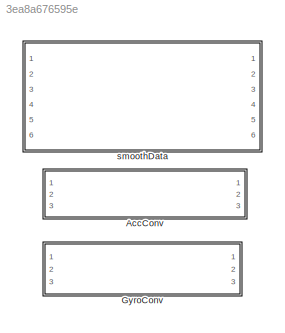
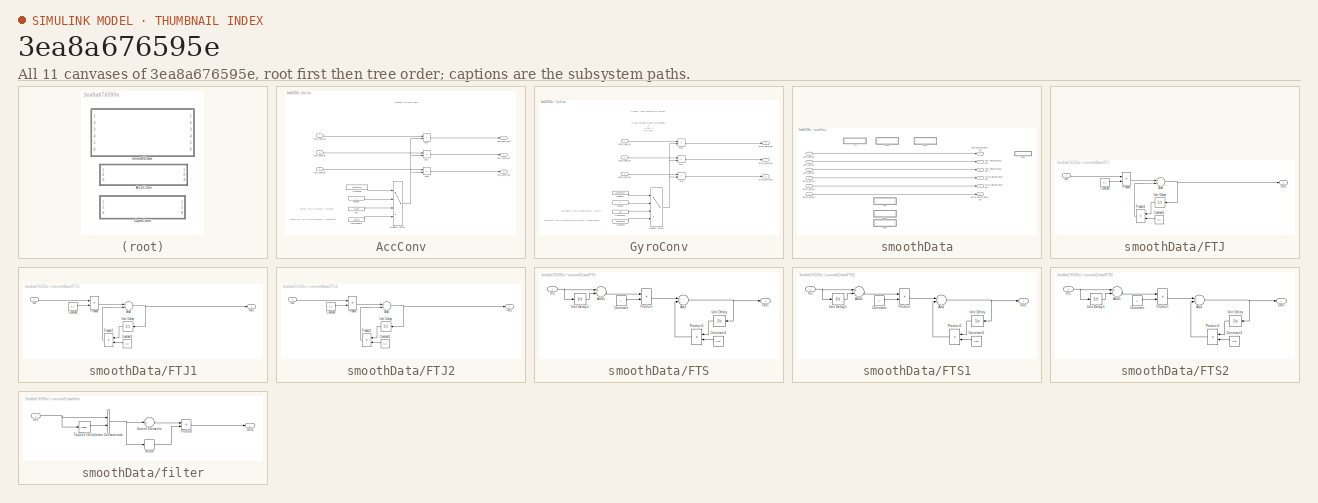
[diagram: thumbnail index - all 11 canvases of the model, root first then tree order]
MODEL slx_3ea8a676595e
KIND library
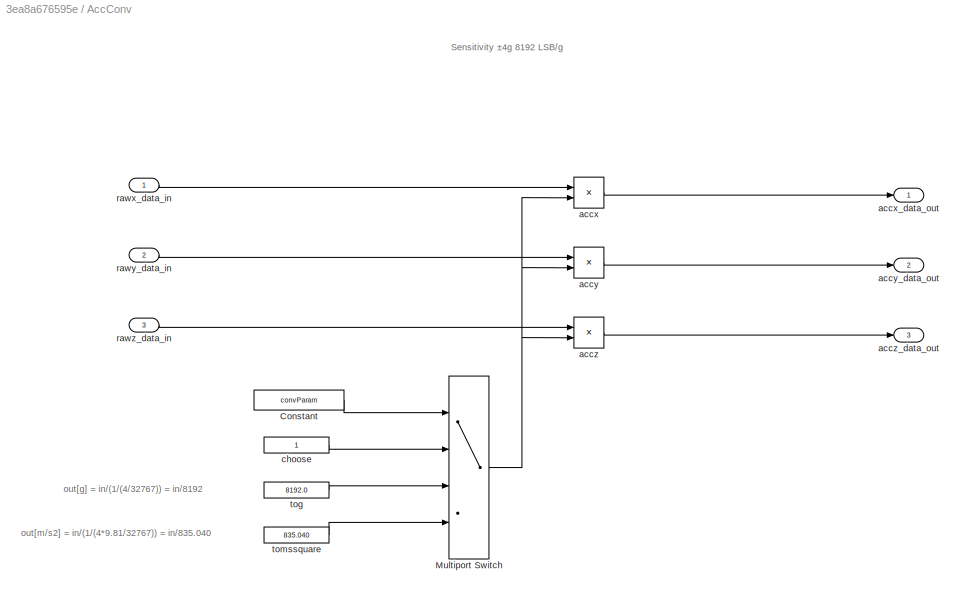
BLOCK [SubSystem] AccConv
  FunctionWithSeparateData = off
  MaskHideContents = off
  MinAlgLoopOccurrences = off
  Opaque = off
  Ports = [3, 3]
  PropExecContextOutsideSubsystem = off
  RTWFcnNameOpts = Use subsystem name
  RTWSystemCode = Nonreusable function
  RequestExecContextInheritance = off
  TreatAsAtomicUnit = on
BLOCK [Constant] AccConv/Constant
  OutDataTypeStr = uint8
  Value = convParam
BLOCK [MultiPortSwitch] AccConv/Multiport Switch
  InputSameDT = off
  Ports = [4, 1]
  SaturateOnIntegerOverflow = off
BLOCK [Product] AccConv/accx
  InputSameDT = off
  Inputs = */
  OutDataTypeStr = Inherit: Inherit via internal rule
  Ports = [2, 1]
  RndMeth = Floor
  SaturateOnIntegerOverflow = off
BLOCK [Outport] AccConv/accx_data_out
  IconDisplay = Port number
  OutDataTypeStr = double
BLOCK [Product] AccConv/accy
  InputSameDT = off
  Inputs = */
  OutDataTypeStr = Inherit: Inherit via internal rule
  Ports = [2, 1]
  RndMeth = Floor
  SaturateOnIntegerOverflow = off
BLOCK [Outport] AccConv/accy_data_out
  IconDisplay = Port number
  OutDataTypeStr = double
  Port = 2
BLOCK [Product] AccConv/accz
  InputSameDT = off
  Inputs = */
  OutDataTypeStr = Inherit: Inherit via internal rule
  Ports = [2, 1]
  RndMeth = Floor
  SaturateOnIntegerOverflow = off
BLOCK [Outport] AccConv/accz_data_out
  IconDisplay = Port number
  OutDataTypeStr = double
  Port = 3
BLOCK [Constant] AccConv/choose
BLOCK [Inport] AccConv/rawx_data_in
  IconDisplay = Port number
BLOCK [Inport] AccConv/rawy_data_in
  IconDisplay = Port number
  Port = 2
BLOCK [Inport] AccConv/rawz_data_in
  IconDisplay = Port number
  Port = 3
BLOCK [Constant] AccConv/tog
  Value = 8192.0
BLOCK [Constant] AccConv/tomssquare
  Value = 835.040
BLOCK [SubSystem] GyroConv
  FunctionWithSeparateData = off
  MaskHideContents = off
  MinAlgLoopOccurrences = off
  Opaque = off
  Ports = [3, 3]
  PropExecContextOutsideSubsystem = off
  RTWFcnNameOpts = Use subsystem name
  RTWSystemCode = Nonreusable function
  RequestExecContextInheritance = off
  TreatAsAtomicUnit = on
BLOCK [Constant] GyroConv/Constant
  Value = 939.650784
BLOCK [Constant] GyroConv/Constant1
  Value = 16.4
BLOCK [MultiPortSwitch] GyroConv/Multiport Switch
  InputSameDT = off
  Ports = [4, 1]
  SaturateOnIntegerOverflow = off
BLOCK [Inport] GyroConv/Xgyro_data_in
  IconDisplay = Port number
BLOCK [Inport] GyroConv/Ygyro_data_in
  IconDisplay = Port number
  Port = 2
BLOCK [Inport] GyroConv/Zgyro_data_in
  IconDisplay = Port number
  Port = 3
BLOCK [Product] GyroConv/accx
  InputSameDT = off
  Inputs = */
  OutDataTypeStr = Inherit: Inherit via internal rule
  Ports = [2, 1]
  RndMeth = Floor
  SaturateOnIntegerOverflow = off
BLOCK [Product] GyroConv/accy
  InputSameDT = off
  Inputs = */
  OutDataTypeStr = Inherit: Inherit via internal rule
  Ports = [2, 1]
  RndMeth = Floor
  SaturateOnIntegerOverflow = off
BLOCK [Product] GyroConv/accz
  InputSameDT = off
  Inputs = */
  OutDataTypeStr = Inherit: Inherit via internal rule
  Ports = [2, 1]
  RndMeth = Floor
  SaturateOnIntegerOverflow = off
BLOCK [Constant] GyroConv/choose
BLOCK [Constant] GyroConv/choose1
  OutDataTypeStr = uint8
  Value = convParam
BLOCK [Outport] GyroConv/gyrox_data_out
  IconDisplay = Port number
  OutDataTypeStr = double
BLOCK [Outport] GyroConv/gyroy_data_out
  IconDisplay = Port number
  OutDataTypeStr = double
  Port = 2
BLOCK [Outport] GyroConv/gyroz_data_out
  IconDisplay = Port number
  OutDataTypeStr = double
  Port = 3
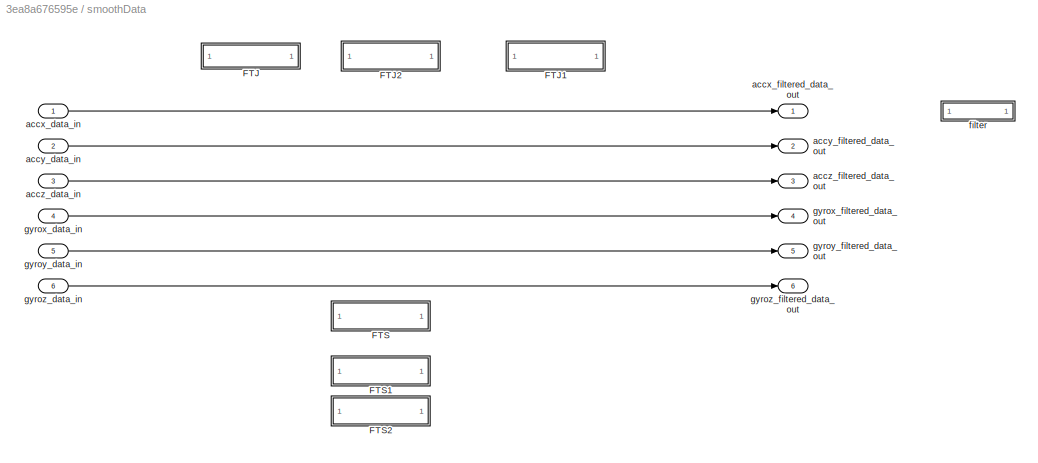
BLOCK [SubSystem] smoothData
  FunctionWithSeparateData = off
  MaskHideContents = off
  MinAlgLoopOccurrences = off
  Opaque = off
  Ports = [6, 6]
  PropExecContextOutsideSubsystem = off
  RTWFcnNameOpts = Use subsystem name
  RTWSystemCode = Nonreusable function
  RequestExecContextInheritance = off
  TreatAsAtomicUnit = on
BLOCK [SubSystem] smoothData/FTJ
  Commented = on
  FunctionWithSeparateData = off
  MaskHideContents = off
  MinAlgLoopOccurrences = off
  Opaque = off
  Ports = [1, 1]
  PropExecContextOutsideSubsystem = off
  RTWSystemCode = Auto
  RequestExecContextInheritance = off
BLOCK [Sum] smoothData/FTJ/Add
  InputSameDT = off
  OutDataTypeStr = Inherit: Inherit via internal rule
  Ports = [2, 1]
  SaturateOnIntegerOverflow = off
BLOCK [Constant] smoothData/FTJ/Constant
  Value = 0.2
BLOCK [Constant] smoothData/FTJ/Constant1
  Value = 0.8
BLOCK [Inport] smoothData/FTJ/In1
  IconDisplay = Port number
BLOCK [Outport] smoothData/FTJ/Out1
  IconDisplay = Port number
BLOCK [Product] smoothData/FTJ/Product
  InputSameDT = off
  OutDataTypeStr = Inherit: Inherit via internal rule
  Ports = [2, 1]
  RndMeth = Floor
  SaturateOnIntegerOverflow = off
BLOCK [Product] smoothData/FTJ/Product1
  InputSameDT = off
  OutDataTypeStr = Inherit: Inherit via internal rule
  Ports = [2, 1]
  RndMeth = Floor
  SaturateOnIntegerOverflow = off
BLOCK [UnitDelay] smoothData/FTJ/Unit Delay
  InputProcessing = Elements as channels (sample based)
  SampleTime = -1
BLOCK [SubSystem] smoothData/FTJ1
  Commented = on
  FunctionWithSeparateData = off
  MaskHideContents = off
  MinAlgLoopOccurrences = off
  Opaque = off
  Ports = [1, 1]
  PropExecContextOutsideSubsystem = off
  RTWSystemCode = Auto
  RequestExecContextInheritance = off
BLOCK [Sum] smoothData/FTJ1/Add
  InputSameDT = off
  OutDataTypeStr = Inherit: Inherit via internal rule
  Ports = [2, 1]
  SaturateOnIntegerOverflow = off
BLOCK [Constant] smoothData/FTJ1/Constant
  Value = 0.2
BLOCK [Constant] smoothData/FTJ1/Constant1
  Value = 0.8
BLOCK [Inport] smoothData/FTJ1/In1
  IconDisplay = Port number
BLOCK [Outport] smoothData/FTJ1/Out1
  IconDisplay = Port number
BLOCK [Product] smoothData/FTJ1/Product
  InputSameDT = off
  OutDataTypeStr = Inherit: Inherit via internal rule
  Ports = [2, 1]
  RndMeth = Floor
  SaturateOnIntegerOverflow = off
BLOCK [Product] smoothData/FTJ1/Product1
  InputSameDT = off
  OutDataTypeStr = Inherit: Inherit via internal rule
  Ports = [2, 1]
  RndMeth = Floor
  SaturateOnIntegerOverflow = off
BLOCK [UnitDelay] smoothData/FTJ1/Unit Delay
  InputProcessing = Elements as channels (sample based)
  SampleTime = -1
BLOCK [SubSystem] smoothData/FTJ2
  Commented = on
  FunctionWithSeparateData = off
  MaskHideContents = off
  MinAlgLoopOccurrences = off
  Opaque = off
  Ports = [1, 1]
  PropExecContextOutsideSubsystem = off
  RTWSystemCode = Auto
  RequestExecContextInheritance = off
BLOCK [Sum] smoothData/FTJ2/Add
  InputSameDT = off
  OutDataTypeStr = Inherit: Inherit via internal rule
  Ports = [2, 1]
  SaturateOnIntegerOverflow = off
BLOCK [Constant] smoothData/FTJ2/Constant
  Value = 0.2
BLOCK [Constant] smoothData/FTJ2/Constant1
  Value = 0.8
BLOCK [Inport] smoothData/FTJ2/In1
  IconDisplay = Port number
BLOCK [Outport] smoothData/FTJ2/Out1
  IconDisplay = Port number
BLOCK [Product] smoothData/FTJ2/Product
  InputSameDT = off
  OutDataTypeStr = Inherit: Inherit via internal rule
  Ports = [2, 1]
  RndMeth = Floor
  SaturateOnIntegerOverflow = off
BLOCK [Product] smoothData/FTJ2/Product1
  InputSameDT = off
  OutDataTypeStr = Inherit: Inherit via internal rule
  Ports = [2, 1]
  RndMeth = Floor
  SaturateOnIntegerOverflow = off
BLOCK [UnitDelay] smoothData/FTJ2/Unit Delay
  InputProcessing = Elements as channels (sample based)
  SampleTime = -1
BLOCK [SubSystem] smoothData/FTS
  Commented = on
  FunctionWithSeparateData = off
  MaskHideContents = off
  MinAlgLoopOccurrences = off
  Opaque = off
  Ports = [1, 1]
  PropExecContextOutsideSubsystem = off
  RTWSystemCode = Auto
  RequestExecContextInheritance = off
BLOCK [Sum] smoothData/FTS/Add
  InputSameDT = off
  OutDataTypeStr = Inherit: Inherit via internal rule
  Ports = [2, 1]
  SaturateOnIntegerOverflow = off
BLOCK [Sum] smoothData/FTS/Add1
  InputSameDT = off
  Inputs = +-
  OutDataTypeStr = Inherit: Inherit via internal rule
  Ports = [2, 1]
  SaturateOnIntegerOverflow = off
BLOCK [Constant] smoothData/FTS/Constant
  Value = 2
BLOCK [Constant] smoothData/FTS/Constant1
  Value = 0.98
BLOCK [Inport] smoothData/FTS/In1
  IconDisplay = Port number
BLOCK [Outport] smoothData/FTS/Out1
  IconDisplay = Port number
BLOCK [Product] smoothData/FTS/Product
  InputSameDT = off
  OutDataTypeStr = Inherit: Inherit via internal rule
  Ports = [2, 1]
  RndMeth = Floor
  SaturateOnIntegerOverflow = off
BLOCK [Product] smoothData/FTS/Product1
  InputSameDT = off
  OutDataTypeStr = Inherit: Inherit via internal rule
  Ports = [2, 1]
  RndMeth = Floor
  SaturateOnIntegerOverflow = off
BLOCK [UnitDelay] smoothData/FTS/Unit Delay
  InputProcessing = Elements as channels (sample based)
  SampleTime = -1
BLOCK [UnitDelay] smoothData/FTS/Unit Delay1
  InputProcessing = Elements as channels (sample based)
  SampleTime = -1
BLOCK [SubSystem] smoothData/FTS1
  Commented = on
  FunctionWithSeparateData = off
  MaskHideContents = off
  MinAlgLoopOccurrences = off
  Opaque = off
  Ports = [1, 1]
  PropExecContextOutsideSubsystem = off
  RTWSystemCode = Auto
  RequestExecContextInheritance = off
BLOCK [Sum] smoothData/FTS1/Add
  InputSameDT = off
  OutDataTypeStr = Inherit: Inherit via internal rule
  Ports = [2, 1]
  SaturateOnIntegerOverflow = off
BLOCK [Sum] smoothData/FTS1/Add1
  InputSameDT = off
  Inputs = +-
  OutDataTypeStr = Inherit: Inherit via internal rule
  Ports = [2, 1]
  SaturateOnIntegerOverflow = off
BLOCK [Constant] smoothData/FTS1/Constant
  Value = 2
BLOCK [Constant] smoothData/FTS1/Constant1
  Value = 0.98
BLOCK [Inport] smoothData/FTS1/In1
  IconDisplay = Port number
BLOCK [Outport] smoothData/FTS1/Out1
  IconDisplay = Port number
BLOCK [Product] smoothData/FTS1/Product
  InputSameDT = off
  OutDataTypeStr = Inherit: Inherit via internal rule
  Ports = [2, 1]
  RndMeth = Floor
  SaturateOnIntegerOverflow = off
BLOCK [Product] smoothData/FTS1/Product1
  InputSameDT = off
  OutDataTypeStr = Inherit: Inherit via internal rule
  Ports = [2, 1]
  RndMeth = Floor
  SaturateOnIntegerOverflow = off
BLOCK [UnitDelay] smoothData/FTS1/Unit Delay
  InputProcessing = Elements as channels (sample based)
  SampleTime = -1
BLOCK [UnitDelay] smoothData/FTS1/Unit Delay1
  InputProcessing = Elements as channels (sample based)
  SampleTime = -1
BLOCK [SubSystem] smoothData/FTS2
  Commented = on
  FunctionWithSeparateData = off
  MaskHideContents = off
  MinAlgLoopOccurrences = off
  Opaque = off
  Ports = [1, 1]
  PropExecContextOutsideSubsystem = off
  RTWSystemCode = Auto
  RequestExecContextInheritance = off
BLOCK [Sum] smoothData/FTS2/Add
  InputSameDT = off
  OutDataTypeStr = Inherit: Inherit via internal rule
  Ports = [2, 1]
  SaturateOnIntegerOverflow = off
BLOCK [Sum] smoothData/FTS2/Add1
  InputSameDT = off
  Inputs = +-
  OutDataTypeStr = Inherit: Inherit via internal rule
  Ports = [2, 1]
  SaturateOnIntegerOverflow = off
BLOCK [Constant] smoothData/FTS2/Constant
  Value = 2
BLOCK [Constant] smoothData/FTS2/Constant1
  Value = 0.98
BLOCK [Inport] smoothData/FTS2/In1
  IconDisplay = Port number
BLOCK [Outport] smoothData/FTS2/Out1
  IconDisplay = Port number
BLOCK [Product] smoothData/FTS2/Product
  InputSameDT = off
  OutDataTypeStr = Inherit: Inherit via internal rule
  Ports = [2, 1]
  RndMeth = Floor
  SaturateOnIntegerOverflow = off
BLOCK [Product] smoothData/FTS2/Product1
  InputSameDT = off
  OutDataTypeStr = Inherit: Inherit via internal rule
  Ports = [2, 1]
  RndMeth = Floor
  SaturateOnIntegerOverflow = off
BLOCK [UnitDelay] smoothData/FTS2/Unit Delay
  InputProcessing = Elements as channels (sample based)
  SampleTime = -1
BLOCK [UnitDelay] smoothData/FTS2/Unit Delay1
  InputProcessing = Elements as channels (sample based)
  SampleTime = -1
BLOCK [Inport] smoothData/accx_data_in
  IconDisplay = Port number
BLOCK [Outport] smoothData/accx_filtered_data_out
  IconDisplay = Port number
  OutDataTypeStr = double
BLOCK [Inport] smoothData/accy_data_in
  IconDisplay = Port number
  Port = 2
BLOCK [Outport] smoothData/accy_filtered_data_out
  IconDisplay = Port number
  OutDataTypeStr = double
  Port = 2
BLOCK [Inport] smoothData/accz_data_in
  IconDisplay = Port number
  Port = 3
BLOCK [Outport] smoothData/accz_filtered_data_out
  IconDisplay = Port number
  OutDataTypeStr = double
  Port = 3
BLOCK [SubSystem] smoothData/filter
  Commented = on
  FunctionWithSeparateData = off
  MaskHideContents = off
  MinAlgLoopOccurrences = off
  Opaque = off
  Ports = [1, 1]
  PropExecContextOutsideSubsystem = off
  RTWSystemCode = Auto
  RequestExecContextInheritance = off
BLOCK [Inport] smoothData/filter/In1
  IconDisplay = Port number
BLOCK [Outport] smoothData/filter/Out1
  IconDisplay = Port number
BLOCK [Product] smoothData/filter/Product
  InputSameDT = off
  Inputs = */
  OutDataTypeStr = double
  Ports = [2, 1]
  RndMeth = Floor
  SaturateOnIntegerOverflow = off
BLOCK [Sum] smoothData/filter/Sum of Elements
  AccumDataTypeStr = double
  InputSameDT = off
  Inputs = +
  OutDataTypeStr = double
  Ports = [1, 1]
  SaturateOnIntegerOverflow = off
BLOCK [Reference] smoothData/filter/Tapped Delay  REF=simulink/Discrete/Tapped Delay
  DelayOrder = Oldest
  NumDelays = 9
  Ports = [1, 1]
  SourceBlock = simulink/Discrete/Tapped Delay
  SourceType = Tapped Delay Line
  includeCurrent = off
  samptime = -1
  vinit = 0
BLOCK [Concatenate] smoothData/filter/Vector Concatenate
  Ports = [2, 1]
BLOCK [Width] smoothData/filter/Width
  DataType = uint16
BLOCK [Inport] smoothData/gyrox_data_in
  IconDisplay = Port number
  Port = 4
BLOCK [Outport] smoothData/gyrox_filtered_data_out
  IconDisplay = Port number
  OutDataTypeStr = double
  Port = 4
BLOCK [Inport] smoothData/gyroy_data_in
  IconDisplay = Port number
  Port = 5
BLOCK [Outport] smoothData/gyroy_filtered_data_out
  IconDisplay = Port number
  OutDataTypeStr = double
  Port = 5
BLOCK [Inport] smoothData/gyroz_data_in
  IconDisplay = Port number
  Port = 6
BLOCK [Outport] smoothData/gyroz_filtered_data_out
  IconDisplay = Port number
  OutDataTypeStr = double
  Port = 6
ANNOTATION AccConv: Sensitivity ±4g 8192 LSB/g
ANNOTATION AccConv: out[g] = in/(1/(4/32767)) = in/8192
ANNOTATION AccConv: out[m/s2] = in/(1/(4*9.81/32767)) = in/835.040
ANNOTATION GyroConv: Convert from deg/sec into rad/sec
ANNOTATION GyroConv: FS_SEL Full Scale Range LSB Sensitivity 3 ± 2000 °/s 16.4 LSB/°/
ANNOTATION GyroConv: out[deg/s] = in/(1/(2000/32767)) = in/16.4
ANNOTATION GyroConv: out[rad/s] = in/(1/(2000/32767*3.14/180)) = in/939.181528
LINE AccConv/Constant:1 -> AccConv/Multiport Switch:1
NET AccConv/Multiport Switch:1 -> AccConv/accx:2, AccConv/accy:2, AccConv/accz:2
LINE AccConv/accx:1 -> AccConv/accx_data_out:1
LINE AccConv/accy:1 -> AccConv/accy_data_out:1
LINE AccConv/accz:1 -> AccConv/accz_data_out:1
LINE AccConv/choose:1 -> AccConv/Multiport Switch:2
LINE AccConv/rawx_data_in:1 -> AccConv/accx:1
LINE AccConv/rawy_data_in:1 -> AccConv/accy:1
LINE AccConv/rawz_data_in:1 -> AccConv/accz:1
LINE AccConv/tog:1 -> AccConv/Multiport Switch:3
LINE AccConv/tomssquare:1 -> AccConv/Multiport Switch:4
LINE GyroConv/Constant1:1 -> GyroConv/Multiport Switch:3
LINE GyroConv/Constant:1 -> GyroConv/Multiport Switch:4
NET GyroConv/Multiport Switch:1 -> GyroConv/accx:2, GyroConv/accy:2, GyroConv/accz:2
LINE GyroConv/Xgyro_data_in:1 -> GyroConv/accx:1
LINE GyroConv/Ygyro_data_in:1 -> GyroConv/accy:1
LINE GyroConv/Zgyro_data_in:1 -> GyroConv/accz:1
LINE GyroConv/accx:1 -> GyroConv/gyrox_data_out:1
LINE GyroConv/accy:1 -> GyroConv/gyroy_data_out:1
LINE GyroConv/accz:1 -> GyroConv/gyroz_data_out:1
LINE GyroConv/choose1:1 -> GyroConv/Multiport Switch:1
LINE GyroConv/choose:1 -> GyroConv/Multiport Switch:2
NET smoothData/FTJ/Add:1 -> smoothData/FTJ/Out1:1, smoothData/FTJ/Unit Delay:1
LINE smoothData/FTJ/Constant1:1 -> smoothData/FTJ/Product1:2
LINE smoothData/FTJ/Constant:1 -> smoothData/FTJ/Product:2
LINE smoothData/FTJ/In1:1 -> smoothData/FTJ/Product:1
LINE smoothData/FTJ/Product1:1 -> smoothData/FTJ/Add:2
LINE smoothData/FTJ/Product:1 -> smoothData/FTJ/Add:1
LINE smoothData/FTJ/Unit Delay:1 -> smoothData/FTJ/Product1:1
NET smoothData/FTJ1/Add:1 -> smoothData/FTJ1/Out1:1, smoothData/FTJ1/Unit Delay:1
LINE smoothData/FTJ1/Constant1:1 -> smoothData/FTJ1/Product1:2
LINE smoothData/FTJ1/Constant:1 -> smoothData/FTJ1/Product:2
LINE smoothData/FTJ1/In1:1 -> smoothData/FTJ1/Product:1
LINE smoothData/FTJ1/Product1:1 -> smoothData/FTJ1/Add:2
LINE smoothData/FTJ1/Product:1 -> smoothData/FTJ1/Add:1
LINE smoothData/FTJ1/Unit Delay:1 -> smoothData/FTJ1/Product1:1
NET smoothData/FTJ2/Add:1 -> smoothData/FTJ2/Out1:1, smoothData/FTJ2/Unit Delay:1
LINE smoothData/FTJ2/Constant1:1 -> smoothData/FTJ2/Product1:2
LINE smoothData/FTJ2/Constant:1 -> smoothData/FTJ2/Product:2
LINE smoothData/FTJ2/In1:1 -> smoothData/FTJ2/Product:1
LINE smoothData/FTJ2/Product1:1 -> smoothData/FTJ2/Add:2
LINE smoothData/FTJ2/Product:1 -> smoothData/FTJ2/Add:1
LINE smoothData/FTJ2/Unit Delay:1 -> smoothData/FTJ2/Product1:1
LINE smoothData/FTS/Add1:1 -> smoothData/FTS/Product:1
NET smoothData/FTS/Add:1 -> smoothData/FTS/Out1:1, smoothData/FTS/Unit Delay:1
LINE smoothData/FTS/Constant1:1 -> smoothData/FTS/Product1:2
LINE smoothData/FTS/Constant:1 -> smoothData/FTS/Product:2
NET smoothData/FTS/In1:1 -> smoothData/FTS/Add1:1, smoothData/FTS/Unit Delay1:1
LINE smoothData/FTS/Product1:1 -> smoothData/FTS/Add:2
LINE smoothData/FTS/Product:1 -> smoothData/FTS/Add:1
LINE smoothData/FTS/Unit Delay1:1 -> smoothData/FTS/Add1:2
LINE smoothData/FTS/Unit Delay:1 -> smoothData/FTS/Product1:1
LINE smoothData/FTS1/Add1:1 -> smoothData/FTS1/Product:1
NET smoothData/FTS1/Add:1 -> smoothData/FTS1/Out1:1, smoothData/FTS1/Unit Delay:1
LINE smoothData/FTS1/Constant1:1 -> smoothData/FTS1/Product1:2
LINE smoothData/FTS1/Constant:1 -> smoothData/FTS1/Product:2
NET smoothData/FTS1/In1:1 -> smoothData/FTS1/Add1:1, smoothData/FTS1/Unit Delay1:1
LINE smoothData/FTS1/Product1:1 -> smoothData/FTS1/Add:2
LINE smoothData/FTS1/Product:1 -> smoothData/FTS1/Add:1
LINE smoothData/FTS1/Unit Delay1:1 -> smoothData/FTS1/Add1:2
LINE smoothData/FTS1/Unit Delay:1 -> smoothData/FTS1/Product1:1
LINE smoothData/FTS2/Add1:1 -> smoothData/FTS2/Product:1
NET smoothData/FTS2/Add:1 -> smoothData/FTS2/Out1:1, smoothData/FTS2/Unit Delay:1
LINE smoothData/FTS2/Constant1:1 -> smoothData/FTS2/Product1:2
LINE smoothData/FTS2/Constant:1 -> smoothData/FTS2/Product:2
NET smoothData/FTS2/In1:1 -> smoothData/FTS2/Add1:1, smoothData/FTS2/Unit Delay1:1
LINE smoothData/FTS2/Product1:1 -> smoothData/FTS2/Add:2
LINE smoothData/FTS2/Product:1 -> smoothData/FTS2/Add:1
LINE smoothData/FTS2/Unit Delay1:1 -> smoothData/FTS2/Add1:2
LINE smoothData/FTS2/Unit Delay:1 -> smoothData/FTS2/Product1:1
LINE smoothData/accx_data_in:1 -> smoothData/accx_filtered_data_out:1
LINE smoothData/accy_data_in:1 -> smoothData/accy_filtered_data_out:1
LINE smoothData/accz_data_in:1 -> smoothData/accz_filtered_data_out:1
NET smoothData/filter/In1:1 -> smoothData/filter/Tapped Delay:1, smoothData/filter/Vector Concatenate:1
LINE smoothData/filter/Product:1 -> smoothData/filter/Out1:1
LINE smoothData/filter/Sum of Elements:1 -> smoothData/filter/Product:1
LINE smoothData/filter/Tapped Delay:1 -> smoothData/filter/Vector Concatenate:2
NET smoothData/filter/Vector Concatenate:1 -> smoothData/filter/Sum of Elements:1, smoothData/filter/Width:1
LINE smoothData/filter/Width:1 -> smoothData/filter/Product:2
LINE smoothData/gyrox_data_in:1 -> smoothData/gyrox_filtered_data_out:1
LINE smoothData/gyroy_data_in:1 -> smoothData/gyroy_filtered_data_out:1
LINE smoothData/gyroz_data_in:1 -> smoothData/gyroz_filtered_data_out:1
note: NET lines group one-source signal fan-out (src -> all destinations, sorted); 1:1 wires keep LINE
